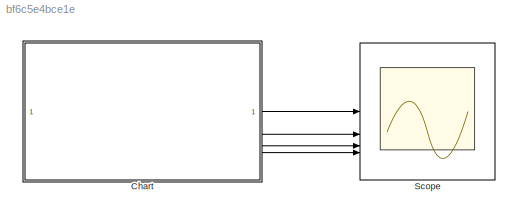
MODEL slx_bf6c5e4bce1e
KIND model
CONFIG AbsTol = auto
CONFIG EnableMultiTasking = off
CONFIG FixedStep = auto
CONFIG MaxStep = auto
CONFIG MinStep = auto
CONFIG RelTol = 1e-3
CONFIG SampleTimeConstraint = Unconstrained
CONFIG SolverName = VariableStepAuto
CONFIG StartTime = 0.0
CONFIG StopTime = inf
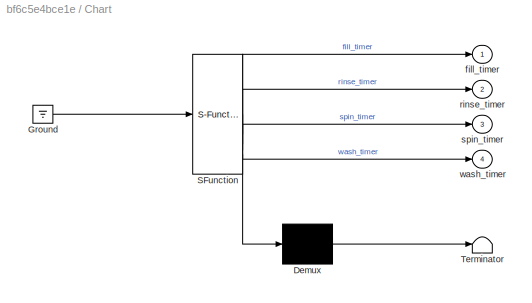
BLOCK [SubSystem] Chart
  ErrorFcn = Stateflow.Translate.translate
  PermitHierarchicalResolution = ExplicitOnly
  SFBlockType = Chart
  TreatAsAtomicUnit = on
BLOCK [Demux] Chart/ Demux 
  Outputs = 1
BLOCK [Ground] Chart/ Ground 
BLOCK [S-Function] Chart/ SFunction 
  EnableBusSupport = on
  FunctionName = sf_sfun
  PortCounts = [1 5]
  SFcnIsStateOwnerBlock = off
  SFunctionDeploymentMode = off
  Tag = Stateflow S-Function 3
BLOCK [Terminator] Chart/ Terminator 
BLOCK [Outport] Chart/fill_timer
BLOCK [Outport] Chart/rinse_timer
  Port = 2
BLOCK [Outport] Chart/spin_timer
  Port = 3
BLOCK [Outport] Chart/wash_timer
  Port = 4
BLOCK [Scope] Scope
  Floating = off
  NumInputPorts = 4
  ScopeSpecificationString = Simulink.scopes.TimeScopeBlockCfg('CurrentConfiguration', extmgr.ConfigurationSet(extmgr.Configuration('Core','General UI',true),extmgr.Configuration('Core','Source UI',true),extmgr.Configuration('Sources','WiredSimulink',true),extmgr.Configuration('Visuals','Time Domain',true,'SerializedDisplays',{struct('MinYLimReal','-3.75','MaxYLimReal','33.75','YLabelReal','','MinYLimMag','0.00000','MaxYLimMa...<+1511ch>
LINE Chart:1 -> Scope:1
LINE Chart:2 -> Scope:2
LINE Chart:3 -> Scope:3
LINE Chart:4 -> Scope:4
CHART Chart states=5 transitions=5
  STATE_LABEL 'spin\nentry:\nspin_timer = 15;\nduring:\n spin_timer = spin_timer - 1;\nexit:\nspin_timer = 0;\n'
  STATE_LABEL 'fill\nentry:\nfill_timer = 10;\nduring:\nfill_timer = fill_timer - 1;\nexit:\nfill_timer = 0;\n'
  STATE_LABEL 'rinse\nentry:\nrinse_timer = 20;\nduring:\nrinse_timer = rinse_timer - 1;\nexit:\nrinse_timer = 0;\n'
  STATE_LABEL "done\nentry:\ndisp('Cycle Complete');\n"
  STATE_LABEL 'wash\nentry:\nwash_timer = 30;\nduring:\nwash_timer = wash_timer - 1;\nexit:\nwash_timer = 0;\n'
CHART  states=0 transitions=0
